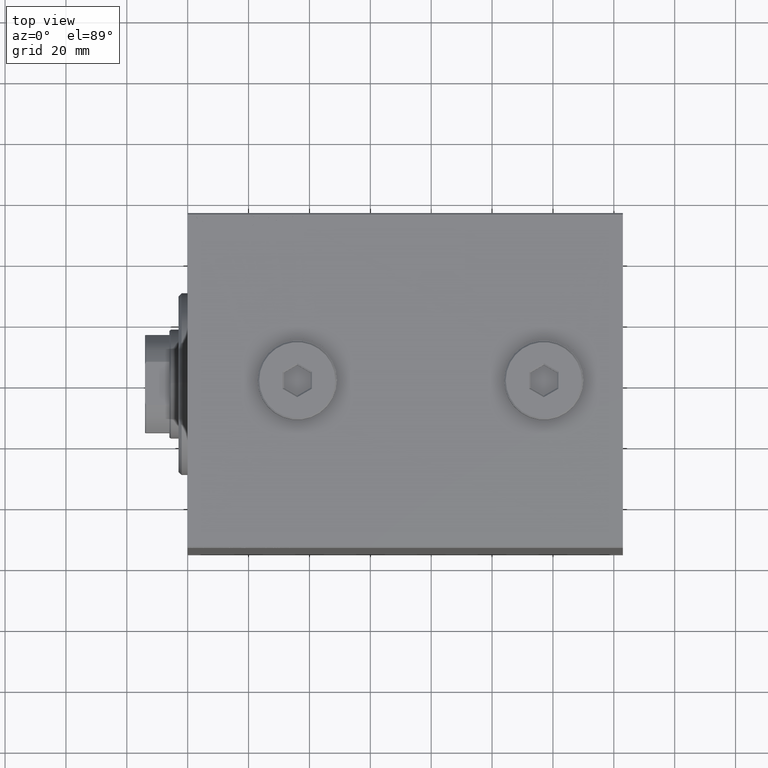
[diagram: clean part render]
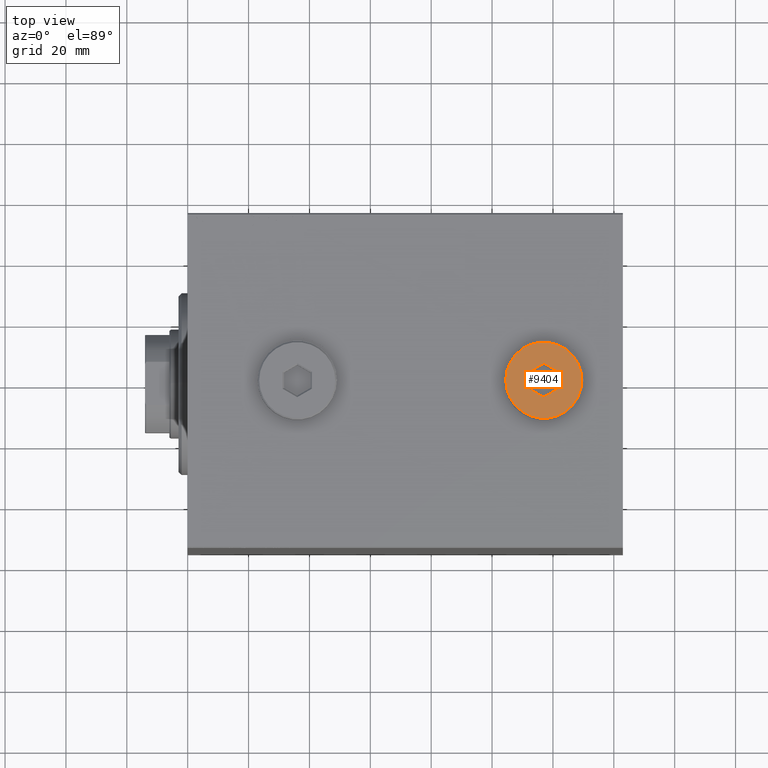
[diagram: same view with one face highlighted and labeled with its STEP entity id]
A machine part, top view. The second image highlights one B-rep face of the part: STEP entity #9404.
In plain terms, the highlighted planar face has unit normal (0, 0, 1).
Its self-contained STEP definition (entity closure, byte-faithful):
#72 = PLANE ( 'NONE',  #29445 ) ;
#561 = ORIENTED_EDGE ( 'NONE', *, *, #13304, .T. ) ;
#755 = CARTESIAN_POINT ( 'NONE',  ( 0.000000000000000000, 0.000000000000000000, 5.000000000000000000 ) ) ;
#833 = VERTEX_POINT ( 'NONE', #5353 ) ;
#3235 = DIRECTION ( 'NONE',  ( 0.8660254037844388186, 0.4999999999999997780, 0.000000000000000000 ) ) ;
#3330 = ORIENTED_EDGE ( 'NONE', *, *, #9515, .T. ) ;
#3483 = CARTESIAN_POINT ( 'NONE',  ( 12.50000000000001066, 1.561424668912876097E-15, 5.000000000000000000 ) ) ;
#3685 = CARTESIAN_POINT ( 'NONE',  ( -0.2500000000000021094, 5.436715034868981000, 5.000000000000000000 ) ) ;
#4135 = VERTEX_POINT ( 'NONE', #43737 ) ;
#5258 = LINE ( 'NONE', #43597, #20233 ) ;
#5353 = CARTESIAN_POINT ( 'NONE',  ( 1.144664513637780713E-15, 5.581052602166389320, 5.000000000000000000 ) ) ;
#5424 = CARTESIAN_POINT ( 'NONE',  ( -4.833333333333340143, 2.790526301083195104, 5.000000000000000000 ) ) ;
#5899 = CIRCLE ( 'NONE', #8852, 12.50000000000001066 ) ;
#6525 = EDGE_CURVE ( 'NONE', #23690, #29198, #34958, .T. ) ;
#7266 = ORIENTED_EDGE ( 'NONE', *, *, #43778, .T. ) ;
#7309 = CIRCLE ( 'NONE', #45668, 12.50000000000001066 ) ;
#7459 = DIRECTION ( 'NONE',  ( 0.000000000000000000, 0.000000000000000000, 1.000000000000000000 ) ) ;
#8592 = CARTESIAN_POINT ( 'NONE',  ( 4.833333333333341919, -2.790526301083194216, 5.000000000000000000 ) ) ;
#8852 = AXIS2_PLACEMENT_3D ( 'NONE', #41314, #44116, #26783 ) ;
#9404 = ADVANCED_FACE ( 'NONE', ( #32398, #42349 ), #72, .T. ) ;
#9515 = EDGE_CURVE ( 'NONE', #38329, #4135, #7309, .T. ) ;
#10901 = ORIENTED_EDGE ( 'NONE', *, *, #12252, .T. ) ;
#11466 = LINE ( 'NONE', #42874, #39445 ) ;
#12252 = EDGE_CURVE ( 'NONE', #4135, #38329, #5899, .T. ) ;
#12734 = DIRECTION ( 'NONE',  ( 0.000000000000000000, 1.000000000000000000, 0.000000000000000000 ) ) ;
#13304 = EDGE_CURVE ( 'NONE', #44458, #32764, #27508, .T. ) ;
#14554 = ORIENTED_EDGE ( 'NONE', *, *, #45500, .T. ) ;
#15081 = DIRECTION ( 'NONE',  ( 1.000000000000000000, 0.000000000000000000, -0.000000000000000000 ) ) ;
#17591 = CARTESIAN_POINT ( 'NONE',  ( 4.583333333333339255, 2.934863868380602092, 5.000000000000000000 ) ) ;
#18946 = CARTESIAN_POINT ( 'NONE',  ( -4.833333333333340143, -2.790526301083195104, 5.000000000000000000 ) ) ;
#19008 = DIRECTION ( 'NONE',  ( 1.000000000000000000, 0.000000000000000000, 0.000000000000000000 ) ) ;
#19113 = DIRECTION ( 'NONE',  ( -0.8660254037844387076, -0.4999999999999998335, 0.000000000000000000 ) ) ;
#19226 = VECTOR ( 'NONE', #12734, 1000.000000000000000 ) ;
#19497 = CARTESIAN_POINT ( 'NONE',  ( 4.833333333333341919, 2.790526301083194216, 5.000000000000000000 ) ) ;
#20233 = VECTOR ( 'NONE', #19113, 1000.000000000000000 ) ;
#21230 = ORIENTED_EDGE ( 'NONE', *, *, #24732, .T. ) ;
#23166 = DIRECTION ( 'NONE',  ( 0.000000000000000000, 0.000000000000000000, 1.000000000000000000 ) ) ;
#23690 = VERTEX_POINT ( 'NONE', #19497 ) ;
#24732 = EDGE_CURVE ( 'NONE', #32764, #833, #31633, .T. ) ;
#24915 = VERTEX_POINT ( 'NONE', #34376 ) ;
#26399 = CARTESIAN_POINT ( 'NONE',  ( 0.000000000000000000, 0.000000000000000000, 5.000000000000000000 ) ) ;
#26783 = DIRECTION ( 'NONE',  ( 1.000000000000000000, 0.000000000000000000, 0.000000000000000000 ) ) ;
#27141 = VECTOR ( 'NONE', #34047, 1000.000000000000000 ) ;
#27355 = CARTESIAN_POINT ( 'NONE',  ( 4.833333333333341919, -2.501851166488378908, 5.000000000000000000 ) ) ;
#27508 = LINE ( 'NONE', #30961, #19226 ) ;
#29198 = VERTEX_POINT ( 'NONE', #8592 ) ;
#29445 = AXIS2_PLACEMENT_3D ( 'NONE', #755, #7459, #15081 ) ;
#29884 = EDGE_LOOP ( 'NONE', ( #561, #21230, #45326, #38536, #7266, #14554 ) ) ;
#30614 = EDGE_CURVE ( 'NONE', #833, #23690, #42082, .T. ) ;
#30961 = CARTESIAN_POINT ( 'NONE',  ( -4.833333333333340143, 2.501851166488380240, 5.000000000000000000 ) ) ;
#31633 = LINE ( 'NONE', #3685, #33426 ) ;
#32398 = FACE_BOUND ( 'NONE', #29884, .T. ) ;
#32764 = VERTEX_POINT ( 'NONE', #5424 ) ;
#32849 = VECTOR ( 'NONE', #35149, 1000.000000000000000 ) ;
#33426 = VECTOR ( 'NONE', #3235, 1000.000000000000114 ) ;
#34047 = DIRECTION ( 'NONE',  ( 0.000000000000000000, -1.000000000000000000, 0.000000000000000000 ) ) ;
#34376 = CARTESIAN_POINT ( 'NONE',  ( -1.883403334290581714E-15, -5.581052602166390209, 5.000000000000000000 ) ) ;
#34958 = LINE ( 'NONE', #27355, #27141 ) ;
#35081 = EDGE_LOOP ( 'NONE', ( #10901, #3330 ) ) ;
#35149 = DIRECTION ( 'NONE',  ( 0.8660254037844387076, -0.4999999999999998890, 0.000000000000000000 ) ) ;
#38329 = VERTEX_POINT ( 'NONE', #3483 ) ;
#38536 = ORIENTED_EDGE ( 'NONE', *, *, #6525, .T. ) ;
#39445 = VECTOR ( 'NONE', #43336, 1000.000000000000114 ) ;
#41314 = CARTESIAN_POINT ( 'NONE',  ( 0.000000000000000000, 0.000000000000000000, 5.000000000000000000 ) ) ;
#42082 = LINE ( 'NONE', #17591, #32849 ) ;
#42349 = FACE_OUTER_BOUND ( 'NONE', #35081, .T. ) ;
#42874 = CARTESIAN_POINT ( 'NONE',  ( -4.583333333333337478, -2.934863868380603424, 5.000000000000000000 ) ) ;
#43336 = DIRECTION ( 'NONE',  ( -0.8660254037844385966, 0.5000000000000001110, 0.000000000000000000 ) ) ;
#43597 = CARTESIAN_POINT ( 'NONE',  ( 0.2500000000000015543, -5.436715034868981888, 5.000000000000000000 ) ) ;
#43737 = CARTESIAN_POINT ( 'NONE',  ( -12.50000000000001066, 0.000000000000000000, 5.000000000000000000 ) ) ;
#43778 = EDGE_CURVE ( 'NONE', #29198, #24915, #5258, .T. ) ;
#44116 = DIRECTION ( 'NONE',  ( 0.000000000000000000, 0.000000000000000000, 1.000000000000000000 ) ) ;
#44458 = VERTEX_POINT ( 'NONE', #18946 ) ;
#45326 = ORIENTED_EDGE ( 'NONE', *, *, #30614, .T. ) ;
#45500 = EDGE_CURVE ( 'NONE', #24915, #44458, #11466, .T. ) ;
#45668 = AXIS2_PLACEMENT_3D ( 'NONE', #26399, #23166, #19008 ) ;